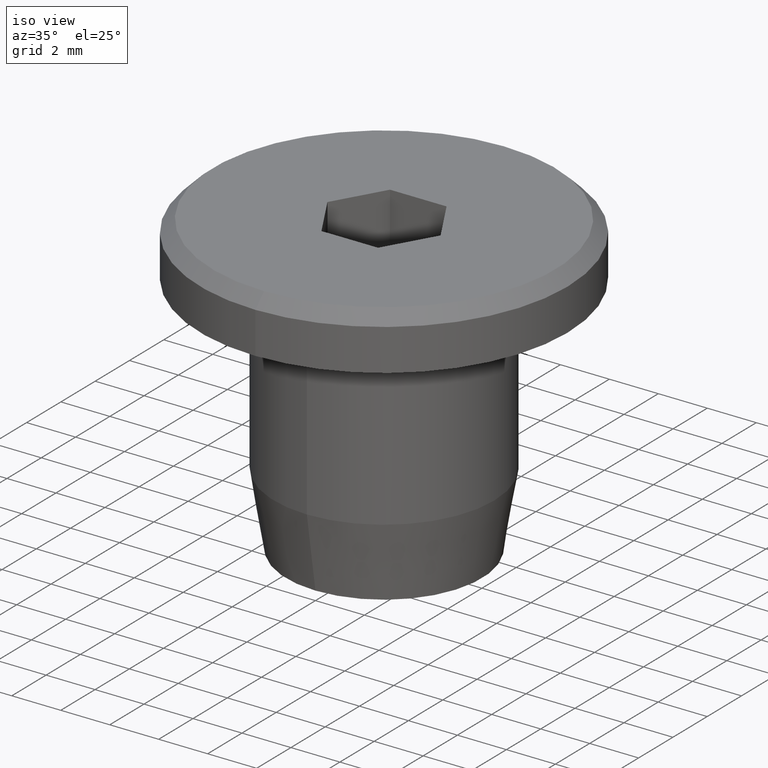
[diagram: clean part render]
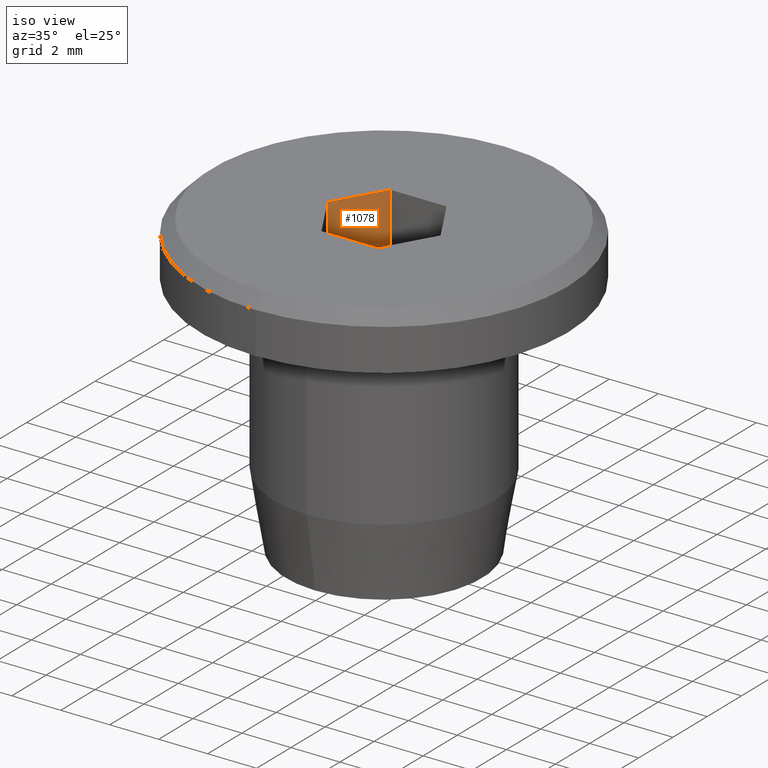
[diagram: same view with one face highlighted and labeled with its STEP entity id]
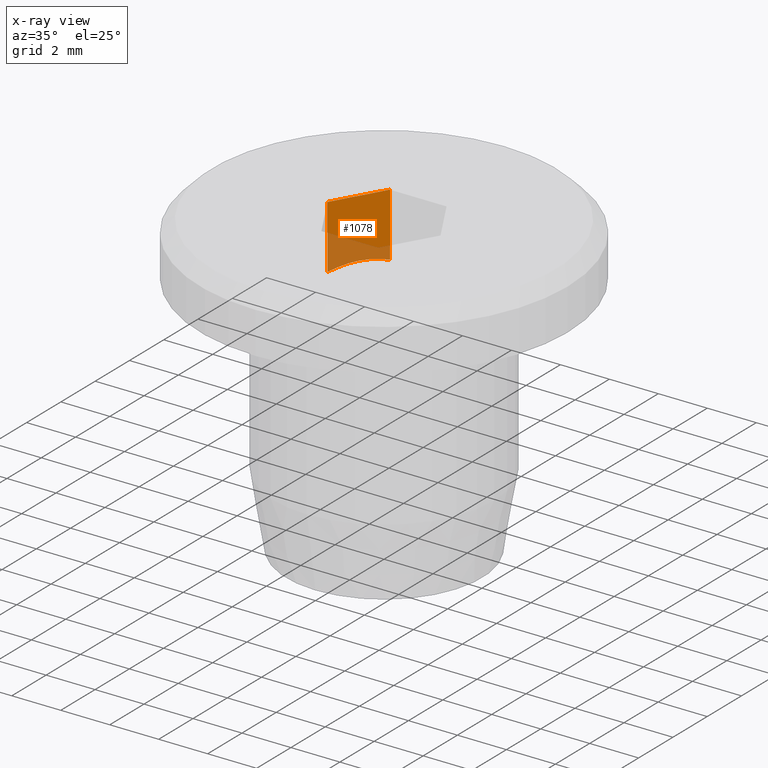
[diagram: x-ray of the same camera — body ghosted, the highlighted face saturated]
A machine part, iso view. The second image highlights one B-rep face of the part: STEP entity #1078.
The next image is the same camera in x-ray: the body ghosted, the highlighted face saturated — about 32% of this face is hidden behind the body in this view.
In plain terms, the highlighted planar face has unit normal (-0.866, 0.5, 0).
Its self-contained STEP definition (entity closure, byte-faithful):
#327 = ORIENTED_EDGE ( 'NONE', *, *, #14411, .T. ) ;
#364 = AXIS2_PLACEMENT_3D ( 'NONE', #3601, #7530, #16374 ) ;
#1078 = ADVANCED_FACE ( 'NONE', ( #3118 ), #11206, .F. ) ;
#1128 = LINE ( 'NONE', #6384, #15017 ) ;
#1209 = DIRECTION ( 'NONE',  ( -0.0000000000000000000, -0.0000000000000000000, 1.000000000000000000 ) ) ;
#1735 = CARTESIAN_POINT ( 'NONE',  ( -1.248950532507175700, 1.836754221557366200, 3.571154496821007400 ) ) ;
#1762 = CARTESIAN_POINT ( 'NONE',  ( -1.154700538379251500, 1.999999999999999600, 6.100000000000000500 ) ) ;
#1813 = DIRECTION ( 'NONE',  ( -0.5000000000000003300, -0.8660254037844384900, 0.0000000000000000000 ) ) ;
#1814 = ORIENTED_EDGE ( 'NONE', *, *, #5808, .T. ) ;
#3118 = FACE_OUTER_BOUND ( 'NONE', #4538, .T. ) ;
#3601 = CARTESIAN_POINT ( 'NONE',  ( -1.154700538379251500, 1.999999999999999600, -6.099999999999998800 ) ) ;
#4412 = CARTESIAN_POINT ( 'NONE',  ( -1.154700538379251500, 1.999999999999999600, 3.514523387004869500 ) ) ;
#4538 = EDGE_LOOP ( 'NONE', ( #6378, #327, #1814, #9704 ) ) ;
#4883 = DIRECTION ( 'NONE',  ( -0.0000000000000000000, -0.0000000000000000000, 1.000000000000000000 ) ) ;
#5571 = CARTESIAN_POINT ( 'NONE',  ( -2.309401076758503400, 4.092306090547360200E-016, 3.514523387004869100 ) ) ;
#5683 = CARTESIAN_POINT ( 'NONE',  ( -1.635025330132357000, 1.168053056548681500, 3.700580385953779100 ) ) ;
#5808 = EDGE_CURVE ( 'NONE', #15262, #7556, #1128, .T. ) ;
#6378 = ORIENTED_EDGE ( 'NONE', *, *, #13682, .F. ) ;
#6384 = CARTESIAN_POINT ( 'NONE',  ( -1.154700538379251500, 1.999999999999999600, -6.099999999999998800 ) ) ;
#7530 = DIRECTION ( 'NONE',  ( -0.8660254037844384900, 0.5000000000000003300, 0.0000000000000000000 ) ) ;
#7556 = VERTEX_POINT ( 'NONE', #9125 ) ;
#8470 = CARTESIAN_POINT ( 'NONE',  ( -2.309401076758503400, 4.092306090547360200E-016, 3.514523387004869100 ) ) ;
#9125 = CARTESIAN_POINT ( 'NONE',  ( -1.154700538379251500, 1.999999999999999600, 6.100000000000000500 ) ) ;
#9330 = CARTESIAN_POINT ( 'NONE',  ( -1.344052718542628300, 1.672032403433096200, 3.617946421453494200 ) ) ;
#9704 = ORIENTED_EDGE ( 'NONE', *, *, #13629, .T. ) ;
#9827 = CARTESIAN_POINT ( 'NONE',  ( -2.309401076758503400, 4.688826351693261900E-016, 6.100000000000000500 ) ) ;
#9880 = CARTESIAN_POINT ( 'NONE',  ( -1.154700538379251500, 1.999999999999999600, 3.514523387004869500 ) ) ;
#10093 = VERTEX_POINT ( 'NONE', #8470 ) ;
#11206 = PLANE ( 'NONE',  #364 ) ;
#11825 = CARTESIAN_POINT ( 'NONE',  ( -1.929937882508000700, 0.6572495320442477400, 3.700127209249984600 ) ) ;
#11981 = CARTESIAN_POINT ( 'NONE',  ( -1.536747091613499300, 1.338275958941715200, 3.682781369526452000 ) ) ;
#12806 = B_SPLINE_CURVE_WITH_KNOTS ( 'NONE', 3,
 ( #5571, #14425, #11825, #5683, #11981, #9330, #1735, #4412 ),
 .UNSPECIFIED., .F., .F.,
 ( 4, 2, 2, 4 ),
 ( 2.386335897417951500E-007, 0.001167194647185766900, 0.001750672653983779400, 0.002334150660781792200 ),
 .UNSPECIFIED. ) ;
#12831 = VECTOR ( 'NONE', #4883, 1000.000000000000000 ) ;
#13566 = LINE ( 'NONE', #14605, #12831 ) ;
#13616 = VECTOR ( 'NONE', #1813, 1000.000000000000100 ) ;
#13629 = EDGE_CURVE ( 'NONE', #7556, #14541, #13801, .T. ) ;
#13682 = EDGE_CURVE ( 'NONE', #10093, #14541, #13566, .T. ) ;
#13801 = LINE ( 'NONE', #1762, #13616 ) ;
#14411 = EDGE_CURVE ( 'NONE', #10093, #15262, #12806, .T. ) ;
#14425 = CARTESIAN_POINT ( 'NONE',  ( -2.121178195004137300, 0.3260115943455904100, 3.627619104253196900 ) ) ;
#14541 = VERTEX_POINT ( 'NONE', #9827 ) ;
#14605 = CARTESIAN_POINT ( 'NONE',  ( -2.309401076758503400, 4.688826351693261900E-016, -6.099999999999998800 ) ) ;
#15017 = VECTOR ( 'NONE', #1209, 1000.000000000000000 ) ;
#15262 = VERTEX_POINT ( 'NONE', #9880 ) ;
#16374 = DIRECTION ( 'NONE',  ( -0.5000000000000003300, -0.8660254037844384900, 0.0000000000000000000 ) ) ;